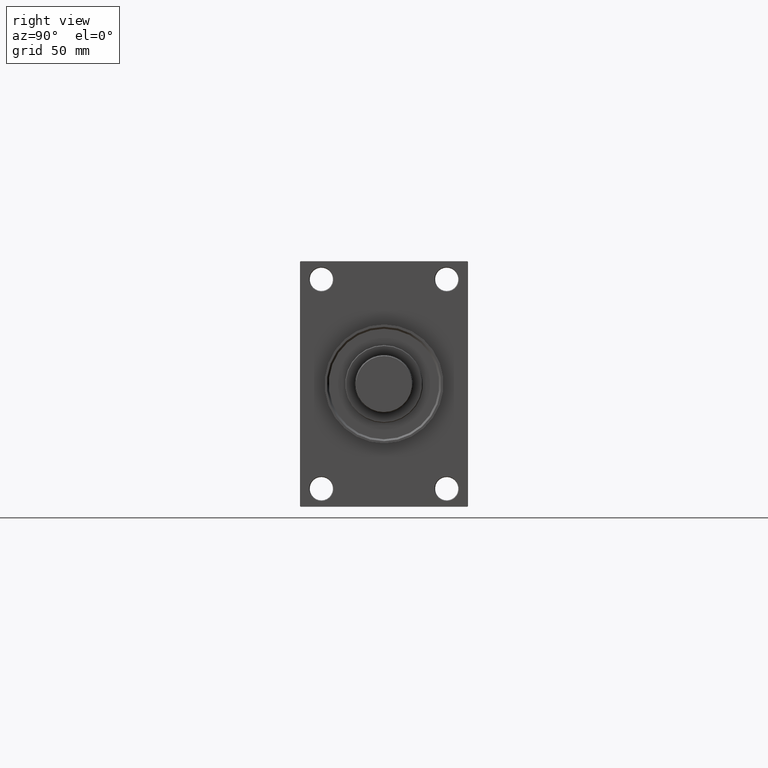
[diagram: clean part render]
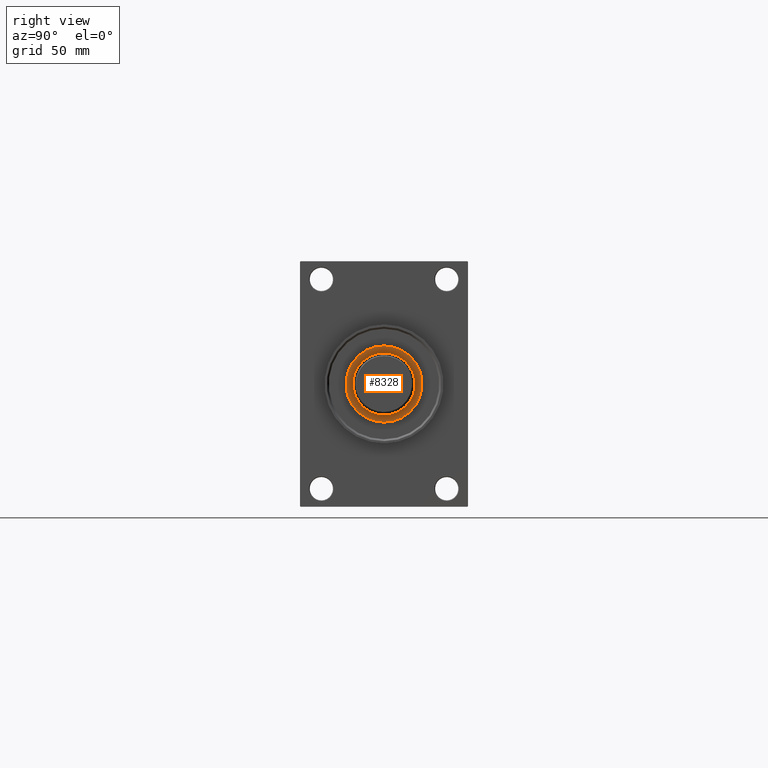
[diagram: same view with one face highlighted and labeled with its STEP entity id]
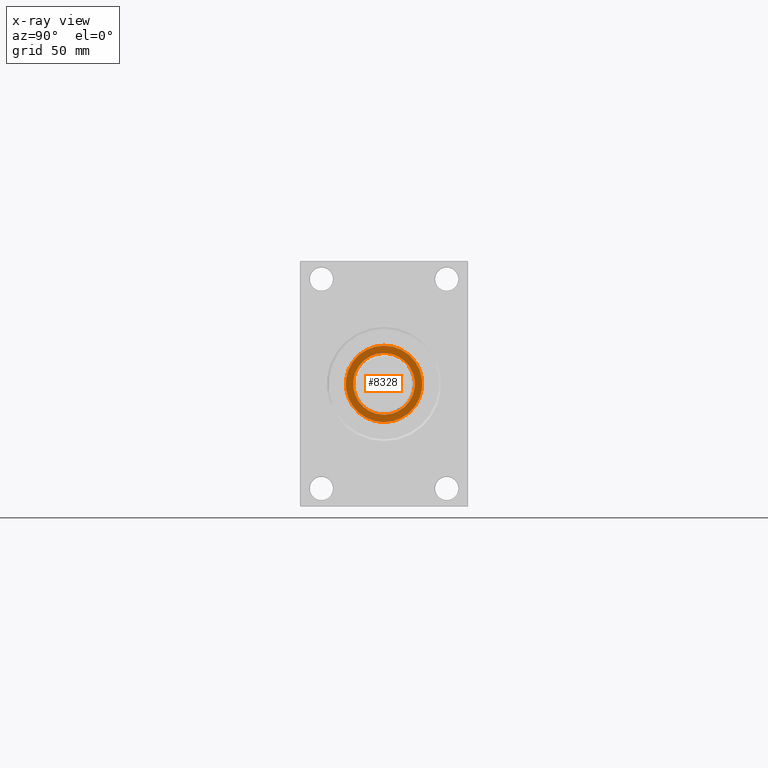
[diagram: x-ray of the same camera — body ghosted, the highlighted face saturated]
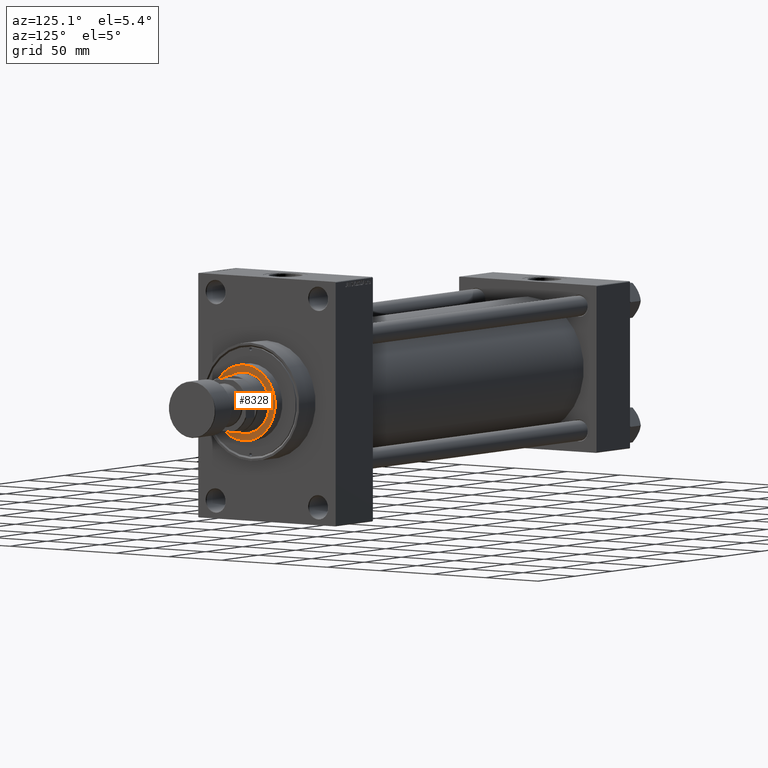
[diagram: same view with one face highlighted and labeled with its STEP entity id]
A machine part, right view. The second image highlights one B-rep face of the part: STEP entity #8328.
The next image is the same camera in x-ray: the body ghosted, the highlighted face saturated — about 0% of this face is hidden behind the body in this view.
A second angle (auxiliary view) of the same face is appended — the face is thin or edge-on in the first view.
In plain terms, the highlighted planar face has unit normal (1, -0, -0).
Its self-contained STEP definition (entity closure, byte-faithful):
#719 = EDGE_CURVE ( 'NONE', #44167, #42545, #35075, .T. ) ;
#3672 = DIRECTION ( 'NONE',  ( 0.000000000000000000, 0.000000000000000000, 1.000000000000000000 ) ) ;
#4421 = AXIS2_PLACEMENT_3D ( 'NONE', #15864, #22925, #45632 ) ;
#4733 = DIRECTION ( 'NONE',  ( 1.000000000000000000, 0.000000000000000000, 0.000000000000000000 ) ) ;
#7823 = DIRECTION ( 'NONE',  ( 1.000000000000000000, 0.000000000000000000, 0.000000000000000000 ) ) ;
#8328 = ADVANCED_FACE ( 'NONE', ( #15053, #37718 ), #19437, .T. ) ;
#8904 = VERTEX_POINT ( 'NONE', #44712 ) ;
#10303 = CARTESIAN_POINT ( 'NONE',  ( -29.50000000000000000, 0.000000000000000000, 52.25999999999999801 ) ) ;
#10870 = AXIS2_PLACEMENT_3D ( 'NONE', #35432, #23505, #4733 ) ;
#11336 = AXIS2_PLACEMENT_3D ( 'NONE', #43271, #46700, #47194 ) ;
#12118 = ORIENTED_EDGE ( 'NONE', *, *, #31453, .F. ) ;
#12987 = CIRCLE ( 'NONE', #4421, 29.50000000000000000 ) ;
#14439 = CIRCLE ( 'NONE', #11336, 24.00000000000000355 ) ;
#15053 = FACE_BOUND ( 'NONE', #20973, .T. ) ;
#15864 = CARTESIAN_POINT ( 'NONE',  ( 0.000000000000000000, 0.000000000000000000, 52.25999999999999801 ) ) ;
#16399 = AXIS2_PLACEMENT_3D ( 'NONE', #27072, #3672, #7823 ) ;
#19437 = PLANE ( 'NONE',  #47121 ) ;
#20973 = EDGE_LOOP ( 'NONE', ( #12118, #22675 ) ) ;
#22675 = ORIENTED_EDGE ( 'NONE', *, *, #48264, .F. ) ;
#22925 = DIRECTION ( 'NONE',  ( 0.000000000000000000, 0.000000000000000000, 1.000000000000000000 ) ) ;
#23505 = DIRECTION ( 'NONE',  ( 0.000000000000000000, 0.000000000000000000, 1.000000000000000000 ) ) ;
#26577 = ORIENTED_EDGE ( 'NONE', *, *, #719, .T. ) ;
#26733 = CARTESIAN_POINT ( 'NONE',  ( 0.000000000000000000, 0.000000000000000000, 52.25999999999999801 ) ) ;
#27072 = CARTESIAN_POINT ( 'NONE',  ( 0.000000000000000000, 0.000000000000000000, 52.25999999999999801 ) ) ;
#29918 = DIRECTION ( 'NONE',  ( 1.000000000000000000, 0.000000000000000000, -0.000000000000000000 ) ) ;
#30723 = ORIENTED_EDGE ( 'NONE', *, *, #37369, .T. ) ;
#31453 = EDGE_CURVE ( 'NONE', #8904, #41333, #14439, .T. ) ;
#35075 = CIRCLE ( 'NONE', #16399, 29.50000000000000000 ) ;
#35386 = CARTESIAN_POINT ( 'NONE',  ( 29.50000000000000000, 3.643324227463375391E-15, 52.25999999999999801 ) ) ;
#35432 = CARTESIAN_POINT ( 'NONE',  ( 0.000000000000000000, 0.000000000000000000, 52.25999999999999801 ) ) ;
#37369 = EDGE_CURVE ( 'NONE', #42545, #44167, #12987, .T. ) ;
#37718 = FACE_OUTER_BOUND ( 'NONE', #43529, .T. ) ;
#41333 = VERTEX_POINT ( 'NONE', #42803 ) ;
#41876 = DIRECTION ( 'NONE',  ( 0.000000000000000000, 0.000000000000000000, 1.000000000000000000 ) ) ;
#42545 = VERTEX_POINT ( 'NONE', #10303 ) ;
#42803 = CARTESIAN_POINT ( 'NONE',  ( -24.00000000000000355, 2.939152317953648289E-15, 52.25999999999999801 ) ) ;
#42830 = CIRCLE ( 'NONE', #10870, 24.00000000000000355 ) ;
#43271 = CARTESIAN_POINT ( 'NONE',  ( 0.000000000000000000, 0.000000000000000000, 52.25999999999999801 ) ) ;
#43529 = EDGE_LOOP ( 'NONE', ( #30723, #26577 ) ) ;
#44167 = VERTEX_POINT ( 'NONE', #35386 ) ;
#44712 = CARTESIAN_POINT ( 'NONE',  ( 24.00000000000000355, 0.000000000000000000, 52.25999999999999801 ) ) ;
#45632 = DIRECTION ( 'NONE',  ( 1.000000000000000000, 0.000000000000000000, 0.000000000000000000 ) ) ;
#46700 = DIRECTION ( 'NONE',  ( 0.000000000000000000, 0.000000000000000000, 1.000000000000000000 ) ) ;
#47121 = AXIS2_PLACEMENT_3D ( 'NONE', #26733, #41876, #29918 ) ;
#47194 = DIRECTION ( 'NONE',  ( 1.000000000000000000, 0.000000000000000000, 0.000000000000000000 ) ) ;
#48264 = EDGE_CURVE ( 'NONE', #41333, #8904, #42830, .T. ) ;